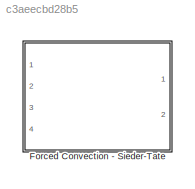
MODEL slx_c3aeecbd28b5
KIND library
CONFIG AbsTol = auto
CONFIG FixedStep = auto
CONFIG MaxStep = auto
CONFIG MinStep = auto
CONFIG RelTol = 1e-3
CONFIG SampleTimeConstraint = Unconstrained
CONFIG Solver = ode45
CONFIG SolverMode = Auto
CONFIG SolverName = ode45
CONFIG StartTime = 0.0
CONFIG StopTime = 10.0
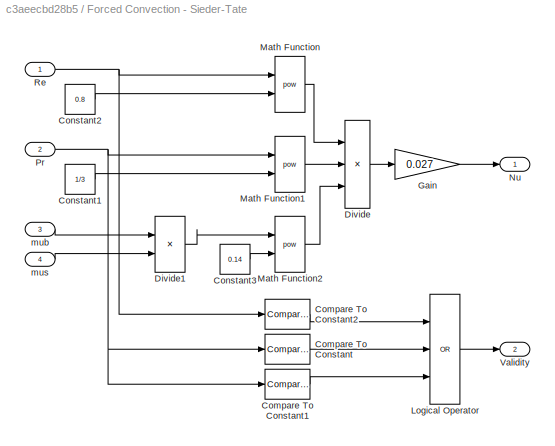
BLOCK [SubSystem] Forced Convection - Sieder-Tate
  Ports = [4, 2]
  RequestExecContextInheritance = off
BLOCK [Reference] Forced Convection - Sieder-Tate/Compare To Constant  REF=simulink/Logic and Bit
Operations/Compare
To Constant
  OutDataTypeStr = boolean
  Ports = [1, 1]
  SourceBlock = simulink/Logic and Bit\nOperations/Compare\nTo Constant
  SourceType = Compare To Constant
  ZeroCross = on
  const = 0.7
  relop = <
BLOCK [Reference] Forced Convection - Sieder-Tate/Compare To Constant1  REF=simulink/Logic and Bit
Operations/Compare
To Constant
  OutDataTypeStr = boolean
  Ports = [1, 1]
  SourceBlock = simulink/Logic and Bit\nOperations/Compare\nTo Constant
  SourceType = Compare To Constant
  ZeroCross = on
  const = 16700
  relop = >
BLOCK [Reference] Forced Convection - Sieder-Tate/Compare To Constant2  REF=simulink/Logic and Bit
Operations/Compare
To Constant
  OutDataTypeStr = boolean
  Ports = [1, 1]
  SourceBlock = simulink/Logic and Bit\nOperations/Compare\nTo Constant
  SourceType = Compare To Constant
  ZeroCross = on
  const = 10000
  relop = <
BLOCK [Constant] Forced Convection - Sieder-Tate/Constant1
  Value = 1/3
BLOCK [Constant] Forced Convection - Sieder-Tate/Constant2
  Value = 0.8
BLOCK [Constant] Forced Convection - Sieder-Tate/Constant3
  Value = 0.14
BLOCK [Product] Forced Convection - Sieder-Tate/Divide
  InputSameDT = off
  Inputs = ***
  OutDataTypeStr = Inherit: Inherit via internal rule
  Ports = [3, 1]
  RndMeth = Floor
  SaturateOnIntegerOverflow = off
BLOCK [Product] Forced Convection - Sieder-Tate/Divide1
  InputSameDT = off
  Inputs = */
  OutDataTypeStr = Inherit: Inherit via internal rule
  Ports = [2, 1]
  RndMeth = Floor
  SaturateOnIntegerOverflow = off
BLOCK [Gain] Forced Convection - Sieder-Tate/Gain
  Gain = 0.027
  OutDataTypeStr = Inherit: Inherit via internal rule
  ParamDataTypeStr = Inherit: Inherit via internal rule
  SaturateOnIntegerOverflow = off
BLOCK [Logic] Forced Convection - Sieder-Tate/Logical Operator
  AllPortsSameDT = off
  Inputs = 3
  Operator = OR
  OutDataTypeStr = boolean
  Ports = [3, 1]
BLOCK [Math] Forced Convection - Sieder-Tate/Math Function
  Operator = pow
  Ports = [2, 1]
BLOCK [Math] Forced Convection - Sieder-Tate/Math Function1
  Operator = pow
  Ports = [2, 1]
BLOCK [Math] Forced Convection - Sieder-Tate/Math Function2
  Operator = pow
  Ports = [2, 1]
BLOCK [Outport] Forced Convection - Sieder-Tate/Nu
  IconDisplay = Port number
BLOCK [Inport] Forced Convection - Sieder-Tate/Pr
  IconDisplay = Port number
  Port = 2
BLOCK [Inport] Forced Convection - Sieder-Tate/Re
  IconDisplay = Port number
BLOCK [Outport] Forced Convection - Sieder-Tate/Validity
  IconDisplay = Port number
  Port = 2
BLOCK [Inport] Forced Convection - Sieder-Tate/mub
  IconDisplay = Port number
  Port = 3
BLOCK [Inport] Forced Convection - Sieder-Tate/mus
  IconDisplay = Port number
  Port = 4
LINE Forced Convection - Sieder-Tate/Compare To Constant1:1 -> Forced Convection - Sieder-Tate/Logical Operator:3
LINE Forced Convection - Sieder-Tate/Compare To Constant2:1 -> Forced Convection - Sieder-Tate/Logical Operator:1
LINE Forced Convection - Sieder-Tate/Compare To Constant:1 -> Forced Convection - Sieder-Tate/Logical Operator:2
LINE Forced Convection - Sieder-Tate/Constant1:1 -> Forced Convection - Sieder-Tate/Math Function1:2
LINE Forced Convection - Sieder-Tate/Constant2:1 -> Forced Convection - Sieder-Tate/Math Function:2
LINE Forced Convection - Sieder-Tate/Constant3:1 -> Forced Convection - Sieder-Tate/Math Function2:2
LINE Forced Convection - Sieder-Tate/Divide1:1 -> Forced Convection - Sieder-Tate/Math Function2:1
LINE Forced Convection - Sieder-Tate/Divide:1 -> Forced Convection - Sieder-Tate/Gain:1
LINE Forced Convection - Sieder-Tate/Gain:1 -> Forced Convection - Sieder-Tate/Nu:1
LINE Forced Convection - Sieder-Tate/Logical Operator:1 -> Forced Convection - Sieder-Tate/Validity:1
LINE Forced Convection - Sieder-Tate/Math Function1:1 -> Forced Convection - Sieder-Tate/Divide:2
LINE Forced Convection - Sieder-Tate/Math Function2:1 -> Forced Convection - Sieder-Tate/Divide:3
LINE Forced Convection - Sieder-Tate/Math Function:1 -> Forced Convection - Sieder-Tate/Divide:1
NET Forced Convection - Sieder-Tate/Pr:1 -> Forced Convection - Sieder-Tate/Compare To Constant1:1, Forced Convection - Sieder-Tate/Compare To Constant:1, Forced Convection - Sieder-Tate/Math Function1:1
NET Forced Convection - Sieder-Tate/Re:1 -> Forced Convection - Sieder-Tate/Compare To Constant2:1, Forced Convection - Sieder-Tate/Math Function:1
LINE Forced Convection - Sieder-Tate/mub:1 -> Forced Convection - Sieder-Tate/Divide1:1
LINE Forced Convection - Sieder-Tate/mus:1 -> Forced Convection - Sieder-Tate/Divide1:2
note: NET lines group one-source signal fan-out (src -> all destinations, sorted); 1:1 wires keep LINE
